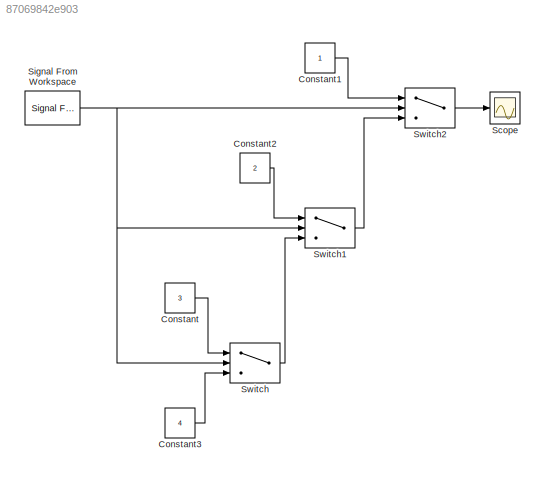
MODEL slx_87069842e903
KIND model
BLOCK [Constant] Constant
  Value = 3
BLOCK [Constant] Constant1
BLOCK [Constant] Constant2
  Value = 2
BLOCK [Constant] Constant3
  Value = 4
BLOCK [Scope] Scope
  DataFormat = StructureWithTime
  Floating = off
  NumInputPorts = 1
  Ports = [1]
  SampleTime = 0
  ShowLegends = off
BLOCK [Reference] Signal From Workspace  REF=dspsrcs4/Signal From
Workspace
  OutputAfterFinalValue = Setting to zero
  Ports = [0, 1]
  SourceBlock = dspsrcs4/Signal From\nWorkspace
  SourceType = Signal From Workspace
  Ts = 1
  X = 0:10
  ignoreOrWarnInputAndFrameLengths = off
  nsamps = 1
BLOCK [Switch] Switch
  AttributesFormatString = Threshold = %<Threshold>
  InputSameDT = off
  SaturateOnIntegerOverflow = off
  Threshold = 2
BLOCK [Switch] Switch1
  AttributesFormatString = Threshold = %<Threshold>
  InputSameDT = off
  SaturateOnIntegerOverflow = off
  Threshold = 3
BLOCK [Switch] Switch2
  AttributesFormatString = Threshold = %<Threshold>
  InputSameDT = off
  SaturateOnIntegerOverflow = off
  Threshold = 6
LINE Constant1:1 -> Switch2:1
LINE Constant2:1 -> Switch1:1
LINE Constant3:1 -> Switch:3
LINE Constant:1 -> Switch:1
NET Signal From Workspace:1 -> Switch1:2, Switch2:2, Switch:2
LINE Switch1:1 -> Switch2:3
LINE Switch2:1 -> Scope:1
LINE Switch:1 -> Switch1:3
note: NET lines group one-source signal fan-out (src -> all destinations, sorted); 1:1 wires keep LINE
